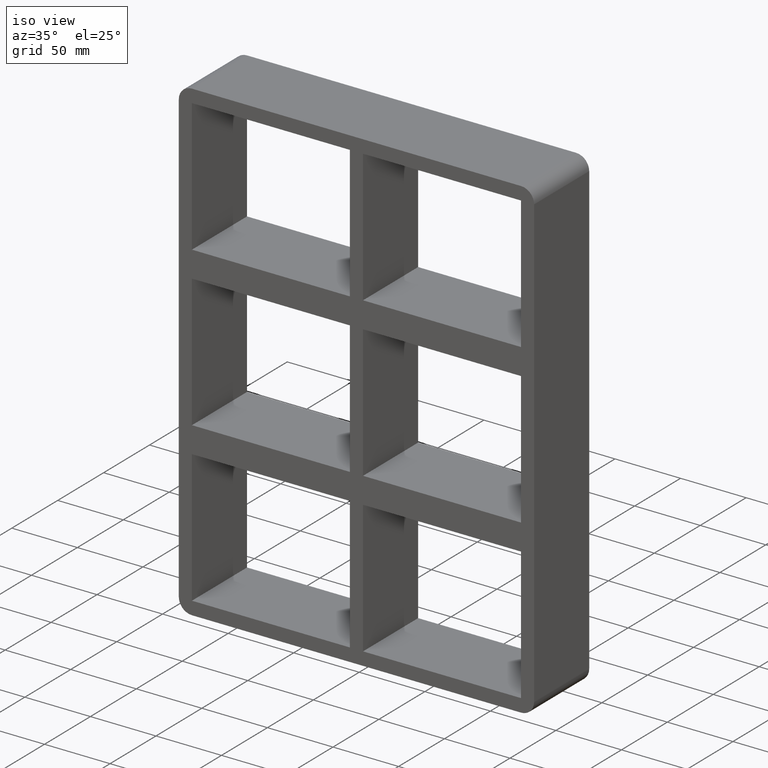
[diagram: clean part render]
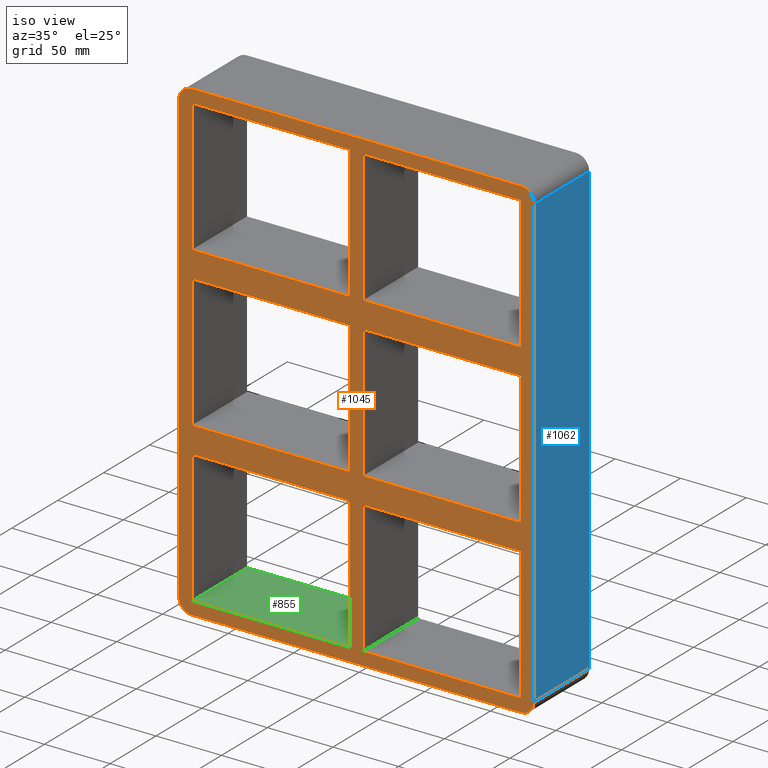
[diagram: same view with three faces highlighted in distinct colors, each labeled with its STEP entity id]
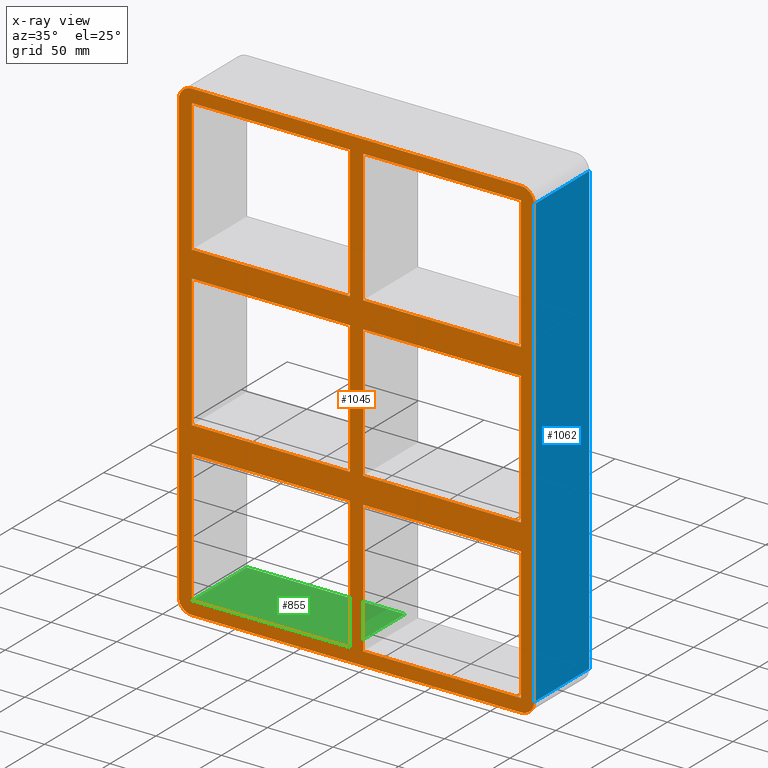
[diagram: x-ray of the same camera — body ghosted, the three highlighted faces saturated]
A machine part, iso view with three faces highlighted in distinct colors.
The next image is the same camera in x-ray (body ghosted, the three faces saturated) — at least one of them is partly hidden behind the body in this view.
Their STEP definitions:

[orange] entity #1045 — the highlighted planar face has unit normal (0, 1, 0).
#75=CARTESIAN_POINT('',(5.0,-3.0,50.499999999990607));
#76=VERTEX_POINT('',#75);
#91=CARTESIAN_POINT('',(125.50000000000182,-3.0,50.499999999990699));
#92=VERTEX_POINT('',#91);
#99=CARTESIAN_POINT('',(125.50000000000182,-3.0,50.499999999990699));
#100=DIRECTION('',(-1.0,0.0,0.0));
#101=VECTOR('',#100,120.50000000000182);
#102=LINE('',#99,#101);
#103=EDGE_CURVE('',#92,#76,#102,.T.);
#113=CARTESIAN_POINT('',(5.0,-3.0,70.499999999999901));
#114=VERTEX_POINT('',#113);
#123=CARTESIAN_POINT('',(125.49999999999986,-3.0,70.499999999999901));
#124=VERTEX_POINT('',#123);
#125=CARTESIAN_POINT('',(5.0,-3.0,70.499999999999901));
#126=DIRECTION('',(1.0,0.0,0.0));
#127=VECTOR('',#126,120.49999999999986);
#128=LINE('',#125,#127);
#129=EDGE_CURVE('',#114,#124,#128,.T.);
#155=CARTESIAN_POINT('',(-5.000000000001332,-3.0,70.499999999999901));
#156=VERTEX_POINT('',#155);
#171=CARTESIAN_POINT('',(-125.49999999999969,-3.0,70.499999999999901));
#172=VERTEX_POINT('',#171);
#179=CARTESIAN_POINT('',(-125.49999999999969,-3.0,70.499999999999901));
#180=DIRECTION('',(1.0,0.0,0.0));
#181=VECTOR('',#180,120.49999999999835);
#182=LINE('',#179,#181);
#183=EDGE_CURVE('',#172,#156,#182,.T.);
#193=CARTESIAN_POINT('',(-5.000000000001332,-3.0,50.499999999990607));
#194=VERTEX_POINT('',#193);
#203=CARTESIAN_POINT('',(-125.49999999999967,-3.0,50.499999999990521));
#204=VERTEX_POINT('',#203);
#205=CARTESIAN_POINT('',(-5.000000000001336,-3.0,50.499999999990607));
#206=DIRECTION('',(-1.0,0.0,0.0));
#207=VECTOR('',#206,120.49999999999835);
#208=LINE('',#205,#207);
#209=EDGE_CURVE('',#194,#204,#208,.T.);
#234=CARTESIAN_POINT('',(-125.49999999999969,-3.0,-50.500000000000114));
#235=VERTEX_POINT('',#234);
#236=CARTESIAN_POINT('',(-125.49999999999997,-3.0,-50.500000000000121));
#237=DIRECTION('',(0.0,0.0,1.0));
#238=VECTOR('',#237,100.99999999999062);
#239=LINE('',#236,#238);
#240=EDGE_CURVE('',#235,#204,#239,.T.);
#273=CARTESIAN_POINT('',(125.49999999999986,-3.0,-50.500000000000114));
#274=VERTEX_POINT('',#273);
#281=CARTESIAN_POINT('',(125.49999999999996,-3.0,50.499999999990706));
#282=DIRECTION('',(0.0,0.0,-1.0));
#283=VECTOR('',#282,100.99999999999081);
#284=LINE('',#281,#283);
#285=EDGE_CURVE('',#92,#274,#284,.T.);
#296=CARTESIAN_POINT('',(125.49999999999996,-3.0,171.5));
#297=VERTEX_POINT('',#296);
#298=CARTESIAN_POINT('',(125.49999999999996,-3.0,171.5));
#299=DIRECTION('',(0.0,0.0,-1.0));
#300=VECTOR('',#299,101.0000000000001);
#301=LINE('',#298,#300);
#302=EDGE_CURVE('',#297,#124,#301,.T.);
#327=CARTESIAN_POINT('',(-5.00000000000135,-3.0,171.5));
#328=VERTEX_POINT('',#327);
#329=CARTESIAN_POINT('',(-5.000000000001329,-3.0,70.499999999999886));
#330=DIRECTION('',(0.0,0.0,1.0));
#331=VECTOR('',#330,101.00000000000011);
#332=LINE('',#329,#331);
#333=EDGE_CURVE('',#156,#328,#332,.T.);
#366=CARTESIAN_POINT('',(-5.000000000001297,-3.0,-50.500000000000114));
#367=VERTEX_POINT('',#366);
#374=CARTESIAN_POINT('',(-5.000000000001304,-3.0,-50.500000000000128));
#375=DIRECTION('',(0.0,0.0,1.0));
#376=VECTOR('',#375,100.99999999999069);
#377=LINE('',#374,#376);
#378=EDGE_CURVE('',#367,#194,#377,.T.);
#397=CARTESIAN_POINT('',(5.0,-3.0,171.5));
#398=VERTEX_POINT('',#397);
#405=CARTESIAN_POINT('',(5.0,-3.0,171.5));
#406=DIRECTION('',(0.0,0.0,-1.0));
#407=VECTOR('',#406,101.00000000000009);
#408=LINE('',#405,#407);
#409=EDGE_CURVE('',#398,#114,#408,.T.);
#421=CARTESIAN_POINT('',(5.0,-3.0,-70.500000000009408));
#422=VERTEX_POINT('',#421);
#437=CARTESIAN_POINT('',(125.50000000000182,-3.0,-70.500000000009322));
#438=VERTEX_POINT('',#437);
#445=CARTESIAN_POINT('',(125.50000000000182,-3.0,-70.500000000009322));
#446=DIRECTION('',(-1.0,0.0,0.0));
#447=VECTOR('',#446,120.50000000000182);
#448=LINE('',#445,#447);
#449=EDGE_CURVE('',#438,#422,#448,.T.);
#459=CARTESIAN_POINT('',(-5.000000000001297,-3.0,-70.500000000009408));
#460=VERTEX_POINT('',#459);
#469=CARTESIAN_POINT('',(-125.49999999999967,-3.0,-70.500000000009493));
#470=VERTEX_POINT('',#469);
#471=CARTESIAN_POINT('',(-5.000000000001307,-3.0,-70.500000000009408));
#472=DIRECTION('',(-1.0,0.0,0.0));
#473=VECTOR('',#472,120.49999999999838);
#474=LINE('',#471,#473);
#475=EDGE_CURVE('',#460,#470,#474,.T.);
#499=CARTESIAN_POINT('',(5.0,-3.0,-50.500000000000114));
#500=VERTEX_POINT('',#499);
#509=CARTESIAN_POINT('',(5.0,-3.0,-50.500000000000114));
#510=DIRECTION('',(1.0,0.0,0.0));
#511=VECTOR('',#510,120.49999999999986);
#512=LINE('',#509,#511);
#513=EDGE_CURVE('',#500,#274,#512,.T.);
#538=CARTESIAN_POINT('',(-125.49999999999969,-3.0,-50.500000000000114));
#539=DIRECTION('',(1.0,0.0,0.0));
#540=VECTOR('',#539,120.49999999999839);
#541=LINE('',#538,#540);
#542=EDGE_CURVE('',#235,#367,#541,.T.);
#561=CARTESIAN_POINT('',(-125.49999999999999,-3.0,171.5));
#562=VERTEX_POINT('',#561);
#569=CARTESIAN_POINT('',(-125.49999999999997,-3.0,70.499999999999886));
#570=DIRECTION('',(0.0,0.0,1.0));
#571=VECTOR('',#570,101.00000000000011);
#572=LINE('',#569,#571);
#573=EDGE_CURVE('',#172,#562,#572,.T.);
#592=CARTESIAN_POINT('',(125.49999999999996,-3.0,-171.5));
#593=VERTEX_POINT('',#592);
#600=CARTESIAN_POINT('',(125.49999999999996,-3.0,-70.500000000009308));
#601=DIRECTION('',(0.0,0.0,-1.0));
#602=VECTOR('',#601,100.99999999999069);
#603=LINE('',#600,#602);
#604=EDGE_CURVE('',#438,#593,#603,.T.);
#773=CARTESIAN_POINT('',(5.0,-3.0,50.499999999990621));
#774=DIRECTION('',(0.0,0.0,-1.0));
#775=VECTOR('',#774,100.99999999999073);
#776=LINE('',#773,#775);
#777=EDGE_CURVE('',#76,#500,#776,.T.);
#791=CARTESIAN_POINT('',(-5.000000000001279,-3.0,-171.5));
#792=VERTEX_POINT('',#791);
#799=CARTESIAN_POINT('',(-5.000000000001279,-3.0,-171.5));
#800=DIRECTION('',(0.0,0.0,1.0));
#801=VECTOR('',#800,100.99999999999058);
#802=LINE('',#799,#801);
#803=EDGE_CURVE('',#792,#460,#802,.T.);
#814=CARTESIAN_POINT('',(5.0,-3.0,-171.49999999998414));
#815=VERTEX_POINT('',#814);
#816=CARTESIAN_POINT('',(5.0,-3.0,-70.500000000009408));
#817=DIRECTION('',(0.0,0.0,-1.0));
#818=VECTOR('',#817,100.99999999997473);
#819=LINE('',#816,#818);
#820=EDGE_CURVE('',#422,#815,#819,.T.);
#839=CARTESIAN_POINT('',(-125.49999999999999,-3.0,-171.5));
#840=VERTEX_POINT('',#839);
#847=CARTESIAN_POINT('',(-5.000000000001286,-3.0,-171.5));
#848=DIRECTION('',(-1.0,0.0,0.0));
#849=VECTOR('',#848,120.49999999999872);
#850=LINE('',#847,#849);
#851=EDGE_CURVE('',#792,#840,#850,.T.);
#862=CARTESIAN_POINT('',(125.49999999999994,-3.0,-171.5));
#863=DIRECTION('',(-1.0,0.0,0.0));
#864=VECTOR('',#863,120.49999999999994);
#865=LINE('',#862,#864);
#866=EDGE_CURVE('',#593,#815,#865,.T.);
#881=CARTESIAN_POINT('',(5.0,-3.0,171.50000000000003));
#882=DIRECTION('',(1.0,0.0,0.0));
#883=VECTOR('',#882,120.49999999999994);
#884=LINE('',#881,#883);
#885=EDGE_CURVE('',#398,#297,#884,.T.);
#896=CARTESIAN_POINT('',(-125.5,-3.0,171.50000000000003));
#897=DIRECTION('',(1.0,0.0,0.0));
#898=VECTOR('',#897,120.49999999999865);
#899=LINE('',#896,#898);
#900=EDGE_CURVE('',#562,#328,#899,.T.);
#913=CARTESIAN_POINT('',(135.50000000000006,-3.0,-171.50000000000003));
#914=VERTEX_POINT('',#913);
#921=CARTESIAN_POINT('',(125.50000000000004,-3.0,-181.50000000000003));
#922=VERTEX_POINT('',#921);
#923=CARTESIAN_POINT('',(125.50000000000004,-3.0,-171.50000000000003));
#924=DIRECTION('',(0.0,1.0,0.0));
#925=DIRECTION('',(0.707106781186547,0.0,-0.707106781186547));
#926=AXIS2_PLACEMENT_3D('',#923,#924,#925);
#927=CIRCLE('',#926,9.999999999999998);
#928=EDGE_CURVE('',#914,#922,#927,.T.);
#939=CARTESIAN_POINT('',(3.449046E-014,-3.0,0.0));
#940=DIRECTION('',(0.0,1.0,0.0));
#941=DIRECTION('',(0.0,0.0,1.0));
#942=AXIS2_PLACEMENT_3D('',#939,#940,#941);
#943=PLANE('',#942);
#944=ORIENTED_EDGE('',*,*,#928,.F.);
#945=CARTESIAN_POINT('',(135.50000000000006,-3.0,171.50000000000003));
#946=VERTEX_POINT('',#945);
#947=CARTESIAN_POINT('',(135.50000000000006,-3.0,-171.50000000000003));
#948=DIRECTION('',(0.0,0.0,1.0));
#949=VECTOR('',#948,343.00000000000006);
#950=LINE('',#947,#949);
#951=EDGE_CURVE('',#914,#946,#950,.T.);
#952=ORIENTED_EDGE('',*,*,#951,.T.);
#953=CARTESIAN_POINT('',(125.50000000000004,-3.0,181.50000000000003));
#954=VERTEX_POINT('',#953);
#955=CARTESIAN_POINT('',(125.50000000000004,-3.0,171.50000000000003));
#956=DIRECTION('',(0.0,1.0,0.0));
#957=DIRECTION('',(0.707106781186547,0.0,0.707106781186547));
#958=AXIS2_PLACEMENT_3D('',#955,#956,#957);
#959=CIRCLE('',#958,9.999999999999998);
#960=EDGE_CURVE('',#954,#946,#959,.T.);
#961=ORIENTED_EDGE('',*,*,#960,.F.);
#962=CARTESIAN_POINT('',(-125.49999999999997,-3.0,181.50000000000003));
#963=VERTEX_POINT('',#962);
#964=CARTESIAN_POINT('',(125.50000000000003,-3.0,181.50000000000003));
#965=DIRECTION('',(-1.0,0.0,0.0));
#966=VECTOR('',#965,251.0);
#967=LINE('',#964,#966);
#968=EDGE_CURVE('',#954,#963,#967,.T.);
#969=ORIENTED_EDGE('',*,*,#968,.T.);
#970=CARTESIAN_POINT('',(-135.49999999999997,-3.0,171.50000000000003));
#971=VERTEX_POINT('',#970);
#972=CARTESIAN_POINT('',(-125.49999999999997,-3.0,171.50000000000003));
#973=DIRECTION('',(0.0,1.0,0.0));
#974=DIRECTION('',(-0.707106781186547,0.0,0.707106781186547));
#975=AXIS2_PLACEMENT_3D('',#972,#973,#974);
#976=CIRCLE('',#975,9.999999999999998);
#977=EDGE_CURVE('',#971,#963,#976,.T.);
#978=ORIENTED_EDGE('',*,*,#977,.F.);
#979=CARTESIAN_POINT('',(-135.49999999999997,-3.0,-171.50000000000003));
#980=VERTEX_POINT('',#979);
#981=CARTESIAN_POINT('',(-135.49999999999997,-3.0,171.50000000000003));
#982=DIRECTION('',(0.0,0.0,-1.0));
#983=VECTOR('',#982,343.00000000000006);
#984=LINE('',#981,#983);
#985=EDGE_CURVE('',#971,#980,#984,.T.);
#986=ORIENTED_EDGE('',*,*,#985,.T.);
#987=CARTESIAN_POINT('',(-125.49999999999997,-3.0,-181.50000000000003));
#988=VERTEX_POINT('',#987);
#989=CARTESIAN_POINT('',(-125.49999999999997,-3.0,-171.50000000000003));
#990=DIRECTION('',(0.0,1.0,0.0));
#991=DIRECTION('',(-0.707106781186547,0.0,-0.707106781186547));
#992=AXIS2_PLACEMENT_3D('',#989,#990,#991);
#993=CIRCLE('',#992,9.999999999999998);
#994=EDGE_CURVE('',#988,#980,#993,.T.);
#995=ORIENTED_EDGE('',*,*,#994,.F.);
#996=CARTESIAN_POINT('',(-125.49999999999994,-3.0,-181.50000000000003));
#997=DIRECTION('',(1.0,0.0,0.0));
#998=VECTOR('',#997,251.0);
#999=LINE('',#996,#998);
#1000=EDGE_CURVE('',#988,#922,#999,.T.);
#1001=ORIENTED_EDGE('',*,*,#1000,.T.);
#1002=EDGE_LOOP('',(#944,#952,#961,#969,#978,#986,#995,#1001));
#1003=FACE_OUTER_BOUND('',#1002,.T.);
#1004=ORIENTED_EDGE('',*,*,#573,.T.);
#1005=ORIENTED_EDGE('',*,*,#900,.T.);
#1006=ORIENTED_EDGE('',*,*,#333,.F.);
#1007=ORIENTED_EDGE('',*,*,#183,.F.);
#1008=EDGE_LOOP('',(#1004,#1005,#1006,#1007));
#1009=FACE_BOUND('',#1008,.T.);
#1010=ORIENTED_EDGE('',*,*,#285,.T.);
#1011=ORIENTED_EDGE('',*,*,#513,.F.);
#1012=ORIENTED_EDGE('',*,*,#777,.F.);
#1013=ORIENTED_EDGE('',*,*,#103,.F.);
#1014=EDGE_LOOP('',(#1010,#1011,#1012,#1013));
#1015=FACE_BOUND('',#1014,.T.);
#1016=ORIENTED_EDGE('',*,*,#209,.F.);
#1017=ORIENTED_EDGE('',*,*,#378,.F.);
#1018=ORIENTED_EDGE('',*,*,#542,.F.);
#1019=ORIENTED_EDGE('',*,*,#240,.T.);
#1020=EDGE_LOOP('',(#1016,#1017,#1018,#1019));
#1021=FACE_BOUND('',#1020,.T.);
#1022=ORIENTED_EDGE('',*,*,#129,.F.);
#1023=ORIENTED_EDGE('',*,*,#409,.F.);
#1024=ORIENTED_EDGE('',*,*,#885,.T.);
#1025=ORIENTED_EDGE('',*,*,#302,.T.);
#1026=EDGE_LOOP('',(#1022,#1023,#1024,#1025));
#1027=FACE_BOUND('',#1026,.T.);
#1028=ORIENTED_EDGE('',*,*,#604,.T.);
#1029=ORIENTED_EDGE('',*,*,#866,.T.);
#1030=ORIENTED_EDGE('',*,*,#820,.F.);
#1031=ORIENTED_EDGE('',*,*,#449,.F.);
#1032=EDGE_LOOP('',(#1028,#1029,#1030,#1031));
#1033=FACE_BOUND('',#1032,.T.);
#1034=ORIENTED_EDGE('',*,*,#475,.F.);
#1035=ORIENTED_EDGE('',*,*,#803,.F.);
#1036=ORIENTED_EDGE('',*,*,#851,.T.);
#1037=CARTESIAN_POINT('',(-125.49999999999997,-3.0,-171.5));
#1038=DIRECTION('',(0.0,0.0,1.0));
#1039=VECTOR('',#1038,100.99999999999051);
#1040=LINE('',#1037,#1039);
#1041=EDGE_CURVE('',#840,#470,#1040,.T.);
#1042=ORIENTED_EDGE('',*,*,#1041,.T.);
#1043=EDGE_LOOP('',(#1034,#1035,#1036,#1042));
#1044=FACE_BOUND('',#1043,.T.);
#1045=ADVANCED_FACE('',(#1003,#1009,#1015,#1021,#1027,#1033,#1044),#943,.F.);

[blue] entity #1062 — the highlighted planar face has unit normal (1, 0, 0).
#616=CARTESIAN_POINT('',(135.50000000000006,57.0,-171.50000000000003));
#617=VERTEX_POINT('',#616);
#667=CARTESIAN_POINT('',(135.50000000000006,57.0,171.50000000000003));
#668=VERTEX_POINT('',#667);
#676=CARTESIAN_POINT('',(135.50000000000006,57.0,171.50000000000003));
#677=DIRECTION('',(0.0,0.0,-1.0));
#678=VECTOR('',#677,343.00000000000006);
#679=LINE('',#676,#678);
#680=EDGE_CURVE('',#668,#617,#679,.T.);
#913=CARTESIAN_POINT('',(135.50000000000006,-3.0,-171.50000000000003));
#914=VERTEX_POINT('',#913);
#915=CARTESIAN_POINT('',(135.50000000000006,57.0,-171.50000000000003));
#916=DIRECTION('',(0.0,-1.0,0.0));
#917=VECTOR('',#916,60.0);
#918=LINE('',#915,#917);
#919=EDGE_CURVE('',#617,#914,#918,.T.);
#945=CARTESIAN_POINT('',(135.50000000000006,-3.0,171.50000000000003));
#946=VERTEX_POINT('',#945);
#947=CARTESIAN_POINT('',(135.50000000000006,-3.0,-171.50000000000003));
#948=DIRECTION('',(0.0,0.0,1.0));
#949=VECTOR('',#948,343.00000000000006);
#950=LINE('',#947,#949);
#951=EDGE_CURVE('',#914,#946,#950,.T.);
#1046=CARTESIAN_POINT('',(135.50000000000006,0.0,181.50000000000003));
#1047=DIRECTION('',(1.0,0.0,0.0));
#1048=DIRECTION('',(0.0,0.0,-1.0));
#1049=AXIS2_PLACEMENT_3D('',#1046,#1047,#1048);
#1050=PLANE('',#1049);
#1051=ORIENTED_EDGE('',*,*,#919,.F.);
#1052=ORIENTED_EDGE('',*,*,#680,.F.);
#1053=CARTESIAN_POINT('',(135.50000000000006,-3.0,171.50000000000003));
#1054=DIRECTION('',(0.0,1.0,0.0));
#1055=VECTOR('',#1054,60.0);
#1056=LINE('',#1053,#1055);
#1057=EDGE_CURVE('',#946,#668,#1056,.T.);
#1058=ORIENTED_EDGE('',*,*,#1057,.F.);
#1059=ORIENTED_EDGE('',*,*,#951,.F.);
#1060=EDGE_LOOP('',(#1051,#1052,#1058,#1059));
#1061=FACE_OUTER_BOUND('',#1060,.T.);
#1062=ADVANCED_FACE('',(#1061),#1050,.T.);

[green] entity #855 — the highlighted planar face has unit normal (0, 0, -1).
#723=CARTESIAN_POINT('',(-125.49999999999999,57.0,-171.5));
#724=VERTEX_POINT('',#723);
#731=CARTESIAN_POINT('',(-5.000000000001279,57.0,-171.5));
#732=VERTEX_POINT('',#731);
#733=CARTESIAN_POINT('',(-125.5,57.0,-171.5));
#734=DIRECTION('',(1.0,0.0,0.0));
#735=VECTOR('',#734,120.49999999999872);
#736=LINE('',#733,#735);
#737=EDGE_CURVE('',#724,#732,#736,.T.);
#791=CARTESIAN_POINT('',(-5.000000000001279,-3.0,-171.5));
#792=VERTEX_POINT('',#791);
#793=CARTESIAN_POINT('',(-5.000000000001279,-3.0,-171.5));
#794=DIRECTION('',(0.0,1.0,0.0));
#795=VECTOR('',#794,60.000000000000007);
#796=LINE('',#793,#795);
#797=EDGE_CURVE('',#792,#732,#796,.T.);
#832=CARTESIAN_POINT('',(125.49999999999996,0.0,-171.5));
#833=DIRECTION('',(0.0,0.0,-1.0));
#834=DIRECTION('',(-1.0,0.0,0.0));
#835=AXIS2_PLACEMENT_3D('',#832,#833,#834);
#836=PLANE('',#835);
#837=ORIENTED_EDGE('',*,*,#797,.T.);
#838=ORIENTED_EDGE('',*,*,#737,.F.);
#839=CARTESIAN_POINT('',(-125.49999999999999,-3.0,-171.5));
#840=VERTEX_POINT('',#839);
#841=CARTESIAN_POINT('',(-125.49999999999997,-3.0,-171.5));
#842=DIRECTION('',(0.0,1.0,0.0));
#843=VECTOR('',#842,60.0);
#844=LINE('',#841,#843);
#845=EDGE_CURVE('',#840,#724,#844,.T.);
#846=ORIENTED_EDGE('',*,*,#845,.F.);
#847=CARTESIAN_POINT('',(-5.000000000001286,-3.0,-171.5));
#848=DIRECTION('',(-1.0,0.0,0.0));
#849=VECTOR('',#848,120.49999999999872);
#850=LINE('',#847,#849);
#851=EDGE_CURVE('',#792,#840,#850,.T.);
#852=ORIENTED_EDGE('',*,*,#851,.F.);
#853=EDGE_LOOP('',(#837,#838,#846,#852));
#854=FACE_OUTER_BOUND('',#853,.T.);
#855=ADVANCED_FACE('',(#854),#836,.F.);